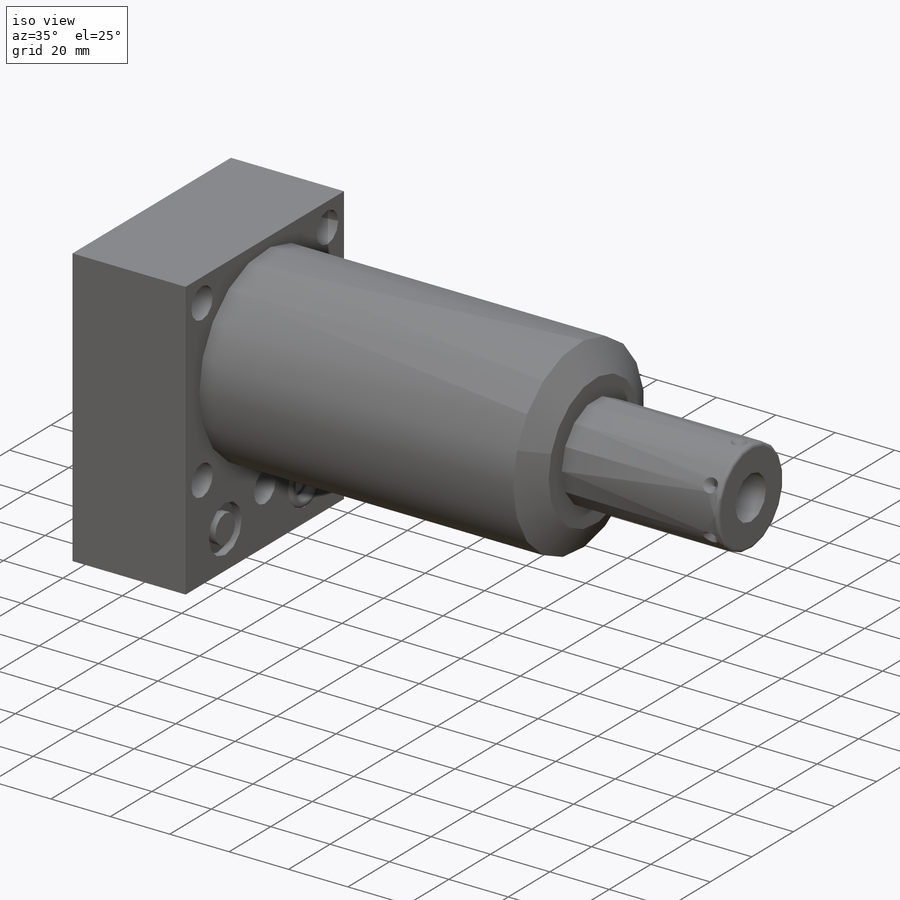
[diagram: iso view]
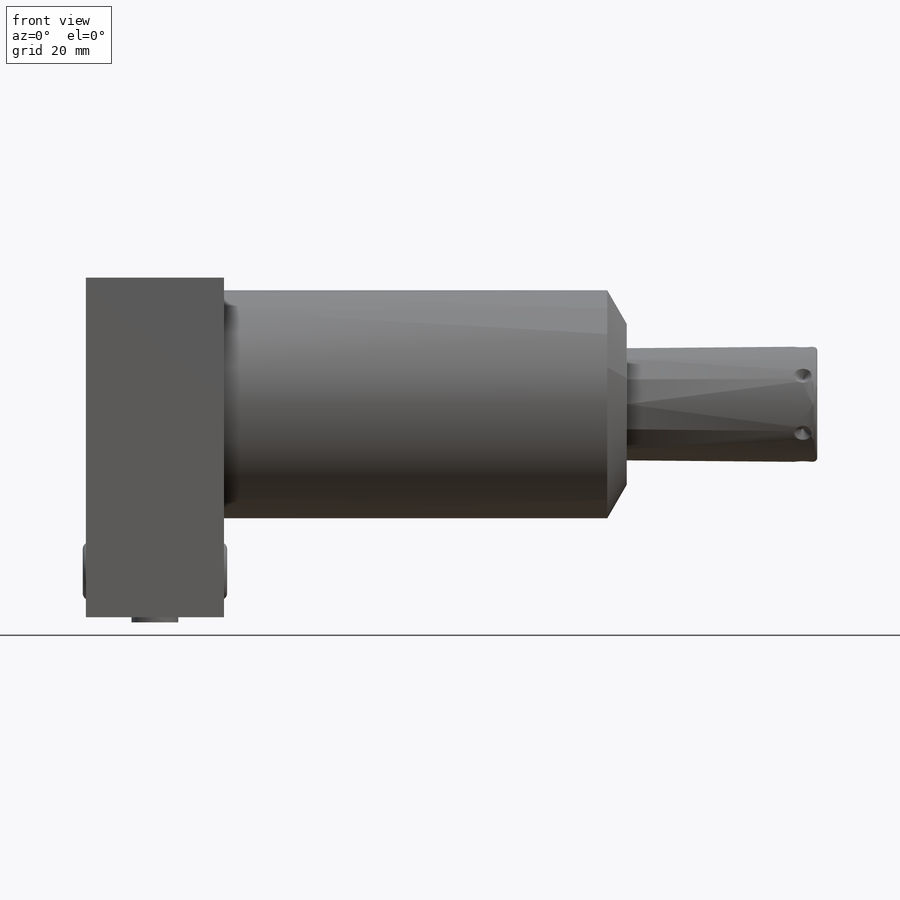
[diagram: front view]
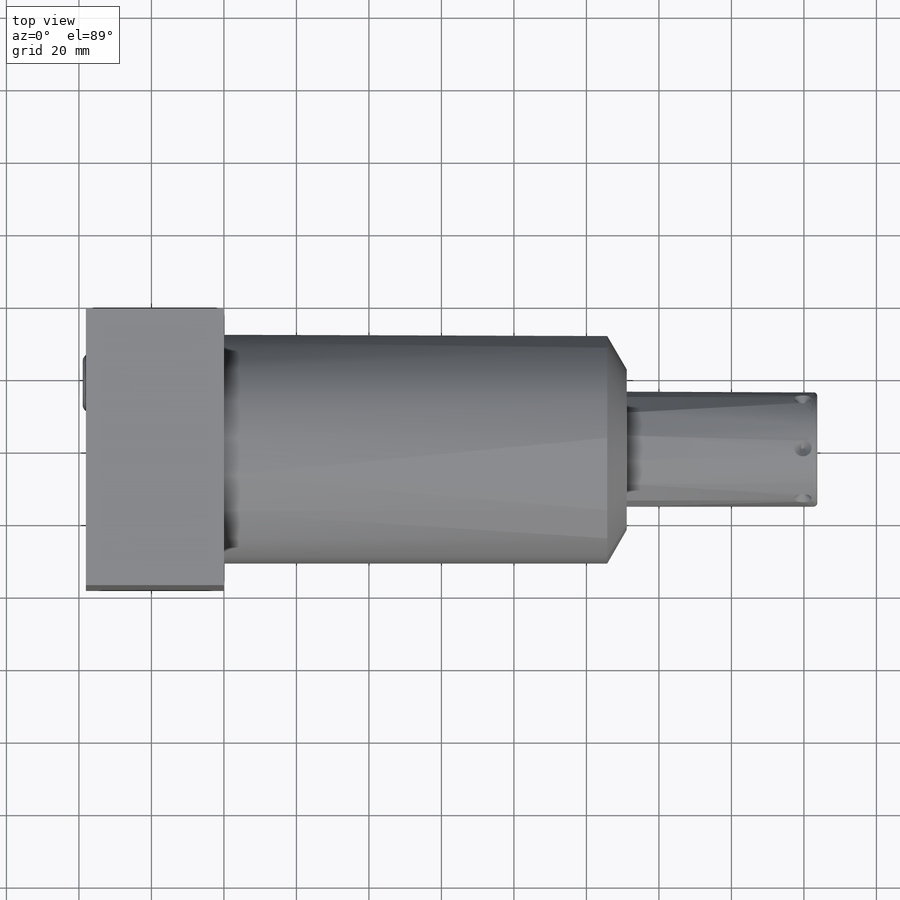
[diagram: top view]
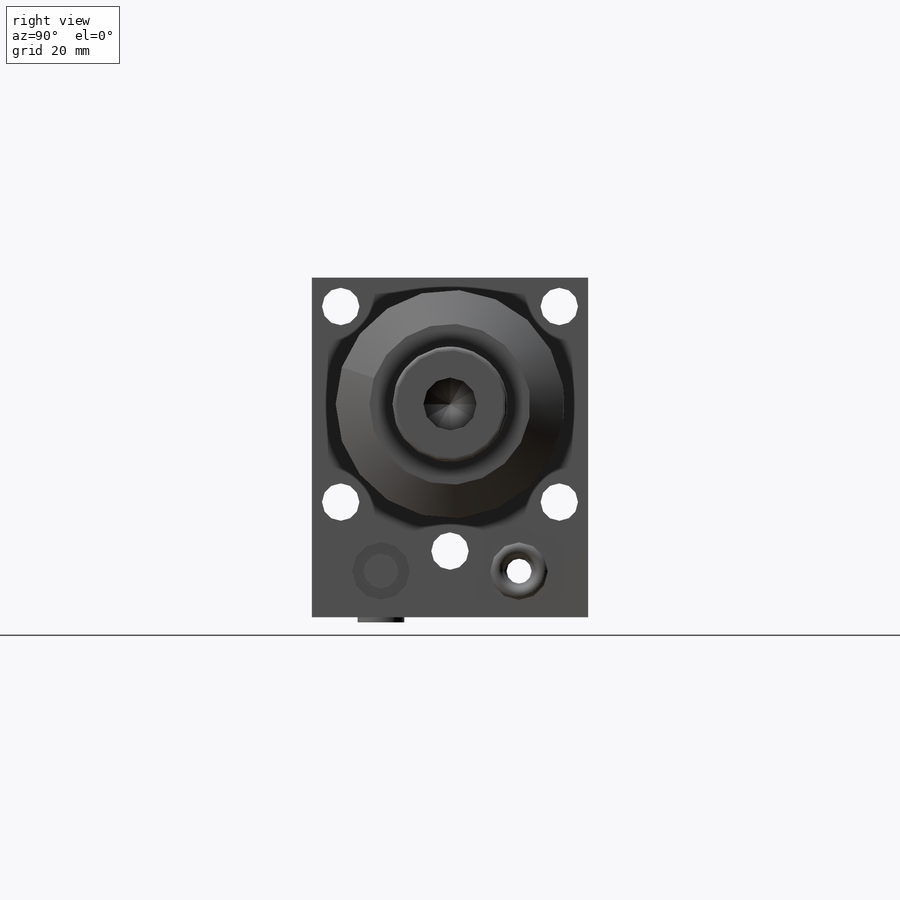
[diagram: right view]
SOLIDWORKS PART (.sldprt)
format: sldprt  version: not decoded by parser v0  size: 559,104 bytes
history: native  units: mm
features: sketch x18, cut_revolve x6, cut_extrude x4, extrude x3, plane x3, revolve x3, material x1, mirror x1, pattern_circular x1, hole x1 (+11 scaffold rows collapsed)
feature tree (52):
  scaffold x11  (default folders/planes/origin — collapsed)
  material  "Alloy Steel"
  sketch  "Sketch1"  dims[D1=76.2mm D2=93.6752mm D3=34.925mm]
  extrude  "Extrude1"  Depth=111.125mm
  sketch  "Sketch2"  dims[D1=63.119mm D2=0.0mm]
  cut_extrude  "Cut-Extrude1"  [1 undecoded]
  sketch  "Sketch3"  dims[c1.D1=44.45mm c1.D2=7.8105mm c2.D2=30.0deg]
  cut_revolve  "Cut-Revolve1"  Angle=360deg
  plane  "Plane19"  Offset=19.05mm
  sketch  "Sketch5"  dims[c1.D1=13.97mm c1.D2=31.75mm c1.D3=6.9088mm c1.D4=2.667mm c1.D5=2.0701mm c2.D5=12.0deg c2.D6=9.0932mm c2.D7=~0.922331mm c3.D7=45.0deg c3.D8=2.0701mm c3.D1=46.0248mm c3.D2=~1.358846mm c4.D2=12.0deg c4.D5=2.0701mm c4.D8=15.875mm]
  cut_revolve  "Cut-Revolve3"  Angle=360deg
  sketch  "Sketch7"  dims[c1.D1=15.875mm c1.D2=2.667mm c1.D3=31.75mm c1.D4=6.9088mm c1.D5=~0.922331mm c2.D5=45.0deg c2.D6=2.0701mm c3.D6=12.0deg c3.D7=9.0932mm c3.D8=2.0701mm c3.D2=46.0248mm c3.D3=2.667mm]
  cut_revolve  "Cut-Revolve5"  Angle=360deg
  sketch  "Sketch9"  dims[c1.D1=19.05mm c1.D2=0.254mm c1.D3=9.9568mm c1.D4=~2.609729mm c2.D4=12.0deg c2.D5=12.3698mm c2.D6=2.5527mm c2.D7=~0.938906mm c3.D7=45.0deg c3.D8=19.05mm]
  cut_revolve  "Cut-Revolve7"  Angle=360deg
  mirror  "Mirror1"
  plane  "Plane10"
  sketch  "Sketch18"  dims[D1=15.875mm]
  cut_extrude  "Cut-Extrude2"  Depth=2.667mm
  sketch  "Sketch19"  dims[D1=15.875mm]
  cut_extrude  "Cut-Extrude3"  Depth=2.667mm
  sketch  "Sketch20"  dims[D1=19.05mm]
  cut_extrude  "Cut-Extrude4"  Depth=0.254mm
  sketch  "Sketch10"  dims[D2=1.016mm D1=31.75mm D3=201.7776mm]
  revolve  "Revolve1"  Angle=360deg
  sketch  "S2D0001"  dims[c1.D1=14.6812mm c1.D2=25.4mm c1.D3=5.7531mm c2.D3=59.0deg]
  cut_revolve  "Cut-Revolve8"  Angle=360deg
  sketch  "Sketch12"  dims[D1=12.8778mm]
  extrude  "Extrude2"  Depth=1.651mm
  sketch  "Sketch13"  dims[D1=9.6012mm]
  extrude  "Extrude3"  [1 undecoded]
  plane  "Plane20"
  sketch  "Sketch14"  dims[D1=3.5306mm D2=12.3444mm]
  revolve  "Revolve2"  Angle=360deg
  sketch  "Sketch15"  dims[D1=3.5306mm D2=12.3444mm]
  revolve  "Revolve3"  Angle=360deg
  sketch  "Sketch16"  dims[c1.D1=3.9624mm c1.D2=4.826mm c1.D3=2.413mm c2.D3=45.0deg c3.D3=~2.966324mm c4.D3=45.0deg c4.D1=3.9624mm]
  cut_revolve  "Cut-Revolve9"  Angle=360deg
  pattern_circular  "CirPattern1"  Count=6 Angle=360deg
  hole  "Hole1"  Diameter=10.3124mm Depth=38.1mm
  sketch  "Sketch22"  dims[D1=30.1498mm D2=26.9748mm D3=40.4876mm]
  sketch  "Sketch21"  dims[Diameter=10.3124mm Depth=38.1mm]
decode coverage: 34 of 37 modeling features carry decoded parameters
note: ~ marks probable driven/reference dimensions
note: 2 parameter values undecoded
note: suppression state not decoded; provenance and decode notes live in map.json
